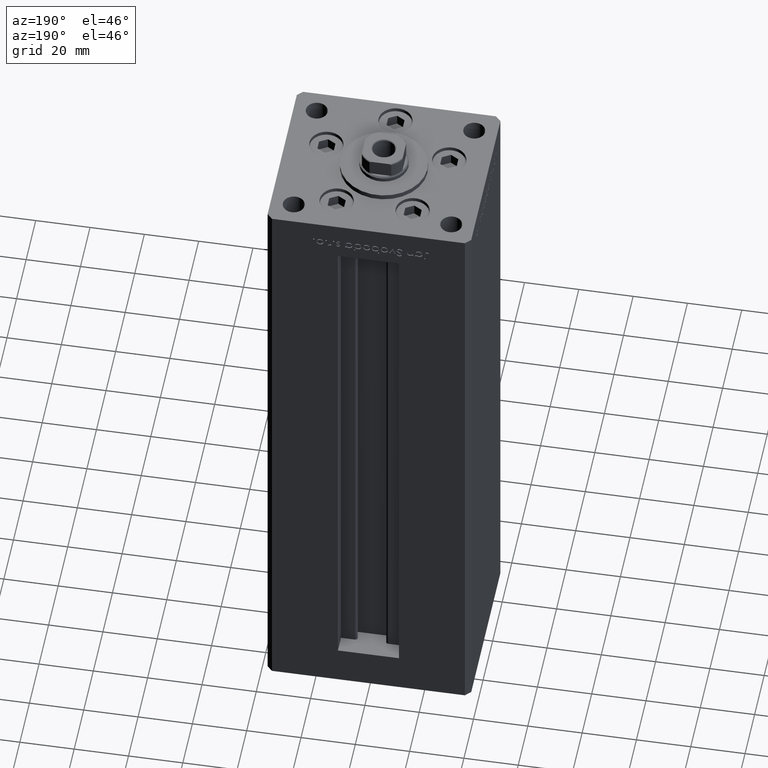
[diagram: clean part render]
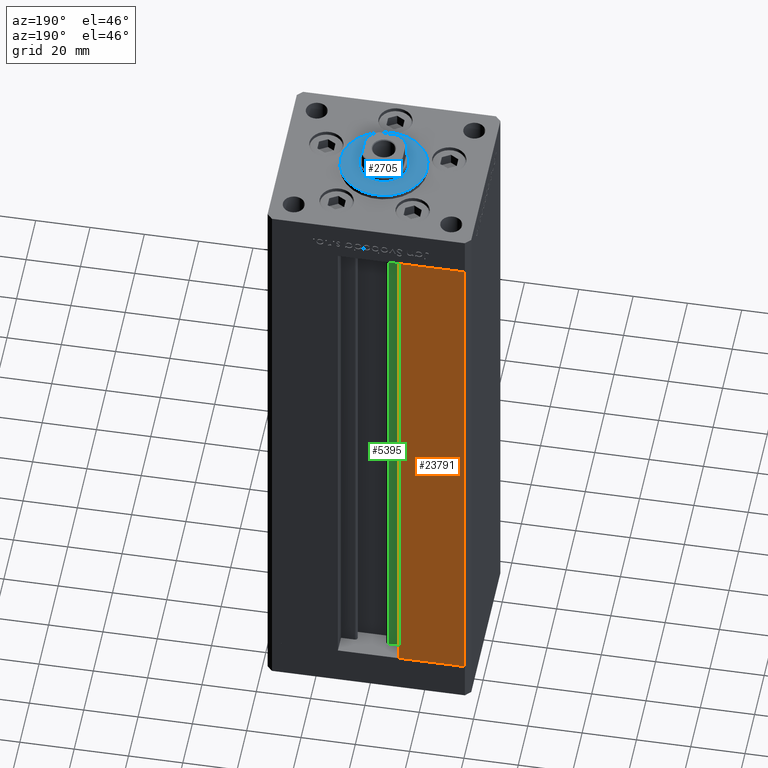
[diagram: same view with three faces highlighted in distinct colors, each labeled with its STEP entity id]
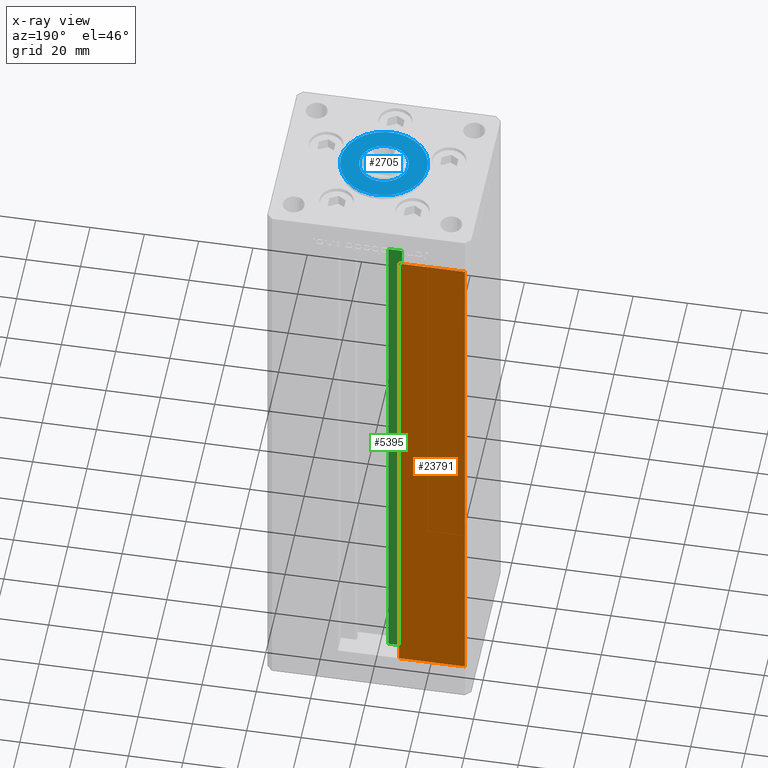
[diagram: x-ray of the same camera — body ghosted, the three highlighted faces saturated]
A machine part, auxiliary view with three faces highlighted in distinct colors.
The next image is the same camera in x-ray (body ghosted, the three faces saturated) — at least one of them is partly hidden behind the body in this view.
Their STEP definitions:

[orange] entity #23791 — the highlighted planar face has unit normal (0, -1, 0).
#2800 = LINE ( 'NONE', #35302, #12979 ) ;
#3823 = VECTOR ( 'NONE', #14023, 1000.000000000000000 ) ;
#4272 = PLANE ( 'NONE',  #44163 ) ;
#5485 = ORIENTED_EDGE ( 'NONE', *, *, #27662, .T. ) ;
#6782 = LINE ( 'NONE', #11022, #21915 ) ;
#6949 = VERTEX_POINT ( 'NONE', #35161 ) ;
#7874 = EDGE_CURVE ( 'NONE', #6949, #36967, #47795, .T. ) ;
#8798 = ORIENTED_EDGE ( 'NONE', *, *, #7874, .F. ) ;
#10707 = EDGE_CURVE ( 'NONE', #41382, #36967, #6782, .T. ) ;
#11022 = CARTESIAN_POINT ( 'NONE',  ( -11.25000000000000178, 32.49999999999999289, 206.0000000000000000 ) ) ;
#11390 = CARTESIAN_POINT ( 'NONE',  ( -11.25000000000000178, 32.49999999999999289, 0.000000000000000000 ) ) ;
#12979 = VECTOR ( 'NONE', #51614, 1000.000000000000000 ) ;
#14023 = DIRECTION ( 'NONE',  ( -0.000000000000000000, -0.000000000000000000, -1.000000000000000000 ) ) ;
#14065 = CARTESIAN_POINT ( 'NONE',  ( -11.25000000000000178, 32.49999999999999289, 206.0000000000000000 ) ) ;
#17664 = DIRECTION ( 'NONE',  ( 0.000000000000000000, -1.000000000000000000, 0.000000000000000000 ) ) ;
#20136 = DIRECTION ( 'NONE',  ( 0.000000000000000000, -0.000000000000000000, -1.000000000000000000 ) ) ;
#20441 = DIRECTION ( 'NONE',  ( 1.000000000000000000, 0.000000000000000000, 0.000000000000000000 ) ) ;
#21915 = VECTOR ( 'NONE', #20441, 1000.000000000000000 ) ;
#21940 = CARTESIAN_POINT ( 'NONE',  ( -35.50000000000000000, 32.49999999999999289, 206.0000000000000000 ) ) ;
#23521 = EDGE_LOOP ( 'NONE', ( #39667, #8798, #5485, #34471 ) ) ;
#23791 = ADVANCED_FACE ( 'NONE', ( #48860 ), #4272, .F. ) ;
#27662 = EDGE_CURVE ( 'NONE', #6949, #36816, #2800, .T. ) ;
#31806 = CARTESIAN_POINT ( 'NONE',  ( -35.50000000000000000, 32.49999999999999289, 0.000000000000000000 ) ) ;
#34355 = LINE ( 'NONE', #21940, #3823 ) ;
#34471 = ORIENTED_EDGE ( 'NONE', *, *, #48631, .F. ) ;
#35161 = CARTESIAN_POINT ( 'NONE',  ( -11.25000000000000178, 32.49999999999999289, 0.000000000000000000 ) ) ;
#35302 = CARTESIAN_POINT ( 'NONE',  ( -11.25000000000000178, 32.49999999999999289, 0.000000000000000000 ) ) ;
#36816 = VERTEX_POINT ( 'NONE', #31806 ) ;
#36967 = VERTEX_POINT ( 'NONE', #14065 ) ;
#37029 = VECTOR ( 'NONE', #47529, 1000.000000000000000 ) ;
#39667 = ORIENTED_EDGE ( 'NONE', *, *, #10707, .T. ) ;
#41382 = VERTEX_POINT ( 'NONE', #44538 ) ;
#44163 = AXIS2_PLACEMENT_3D ( 'NONE', #50086, #17664, #20136 ) ;
#44538 = CARTESIAN_POINT ( 'NONE',  ( -35.50000000000000000, 32.49999999999999289, 206.0000000000000000 ) ) ;
#47529 = DIRECTION ( 'NONE',  ( -0.000000000000000000, -0.000000000000000000, 1.000000000000000000 ) ) ;
#47795 = LINE ( 'NONE', #11390, #37029 ) ;
#48631 = EDGE_CURVE ( 'NONE', #41382, #36816, #34355, .T. ) ;
#48860 = FACE_OUTER_BOUND ( 'NONE', #23521, .T. ) ;
#50086 = CARTESIAN_POINT ( 'NONE',  ( -11.25000000000000178, 32.49999999999999289, 206.0000000000000000 ) ) ;
#51614 = DIRECTION ( 'NONE',  ( -1.000000000000000000, 0.000000000000000000, 0.000000000000000000 ) ) ;

[blue] entity #2705 — the highlighted planar face has unit normal (0, 0, 1).
#537 = CIRCLE ( 'NONE', #45185, 9.000000000000000000 ) ;
#1303 = CARTESIAN_POINT ( 'NONE',  ( 16.00000000000000355, -4.979459025271462852E-15, 2.000000000000000000 ) ) ;
#2705 = ADVANCED_FACE ( 'NONE', ( #49267, #13150 ), #32957, .T. ) ;
#4779 = CARTESIAN_POINT ( 'NONE',  ( 0.000000000000000000, -6.938893903907228378E-15, 2.000000000000000000 ) ) ;
#5224 = CARTESIAN_POINT ( 'NONE',  ( 0.000000000000000000, -6.938893903907228378E-15, 2.000000000000000000 ) ) ;
#11027 = AXIS2_PLACEMENT_3D ( 'NONE', #5224, #40884, #41142 ) ;
#11100 = EDGE_CURVE ( 'NONE', #38228, #27109, #42126, .T. ) ;
#11359 = EDGE_CURVE ( 'NONE', #28117, #38294, #46395, .T. ) ;
#12024 = EDGE_CURVE ( 'NONE', #27109, #38228, #21126, .T. ) ;
#12974 = DIRECTION ( 'NONE',  ( 1.000000000000000000, 0.000000000000000000, 0.000000000000000000 ) ) ;
#13150 = FACE_OUTER_BOUND ( 'NONE', #16284, .T. ) ;
#14100 = CARTESIAN_POINT ( 'NONE',  ( 0.000000000000000000, -6.938893903907228378E-15, 2.000000000000000000 ) ) ;
#15496 = ORIENTED_EDGE ( 'NONE', *, *, #11359, .F. ) ;
#16284 = EDGE_LOOP ( 'NONE', ( #31486, #40754 ) ) ;
#16364 = CARTESIAN_POINT ( 'NONE',  ( -9.000000000000000000, -5.836711784674610467E-15, 2.000000000000000000 ) ) ;
#17540 = DIRECTION ( 'NONE',  ( 0.000000000000000000, 0.000000000000000000, 1.000000000000000000 ) ) ;
#21126 = CIRCLE ( 'NONE', #34622, 16.00000000000000355 ) ;
#21587 = CARTESIAN_POINT ( 'NONE',  ( 0.000000000000000000, -6.938893903907228378E-15, 2.000000000000000000 ) ) ;
#23448 = EDGE_LOOP ( 'NONE', ( #31755, #15496 ) ) ;
#24446 = AXIS2_PLACEMENT_3D ( 'NONE', #4779, #29600, #12974 ) ;
#25808 = DIRECTION ( 'NONE',  ( 1.000000000000000000, 0.000000000000000000, -0.000000000000000000 ) ) ;
#26862 = CARTESIAN_POINT ( 'NONE',  ( 9.000000000000000000, -6.938893903907228378E-15, 2.000000000000000000 ) ) ;
#27109 = VERTEX_POINT ( 'NONE', #1303 ) ;
#27137 = CARTESIAN_POINT ( 'NONE',  ( 0.000000000000000000, -6.938893903907228378E-15, 2.000000000000000000 ) ) ;
#28117 = VERTEX_POINT ( 'NONE', #16364 ) ;
#29600 = DIRECTION ( 'NONE',  ( 0.000000000000000000, 0.000000000000000000, 1.000000000000000000 ) ) ;
#31486 = ORIENTED_EDGE ( 'NONE', *, *, #11100, .T. ) ;
#31755 = ORIENTED_EDGE ( 'NONE', *, *, #50393, .F. ) ;
#32957 = PLANE ( 'NONE',  #42112 ) ;
#33645 = DIRECTION ( 'NONE',  ( 1.000000000000000000, 0.000000000000000000, 0.000000000000000000 ) ) ;
#34622 = AXIS2_PLACEMENT_3D ( 'NONE', #27137, #35063, #43206 ) ;
#35063 = DIRECTION ( 'NONE',  ( 0.000000000000000000, 0.000000000000000000, 1.000000000000000000 ) ) ;
#38228 = VERTEX_POINT ( 'NONE', #49018 ) ;
#38294 = VERTEX_POINT ( 'NONE', #26862 ) ;
#40754 = ORIENTED_EDGE ( 'NONE', *, *, #12024, .T. ) ;
#40858 = DIRECTION ( 'NONE',  ( 0.000000000000000000, 0.000000000000000000, 1.000000000000000000 ) ) ;
#40884 = DIRECTION ( 'NONE',  ( 0.000000000000000000, 0.000000000000000000, 1.000000000000000000 ) ) ;
#41142 = DIRECTION ( 'NONE',  ( 1.000000000000000000, 0.000000000000000000, 0.000000000000000000 ) ) ;
#42112 = AXIS2_PLACEMENT_3D ( 'NONE', #21587, #40858, #25808 ) ;
#42126 = CIRCLE ( 'NONE', #24446, 16.00000000000000355 ) ;
#43206 = DIRECTION ( 'NONE',  ( 1.000000000000000000, 0.000000000000000000, 0.000000000000000000 ) ) ;
#45185 = AXIS2_PLACEMENT_3D ( 'NONE', #14100, #17540, #33645 ) ;
#46395 = CIRCLE ( 'NONE', #11027, 9.000000000000000000 ) ;
#49018 = CARTESIAN_POINT ( 'NONE',  ( -16.00000000000000355, -6.938893903907228378E-15, 2.000000000000000000 ) ) ;
#49267 = FACE_BOUND ( 'NONE', #23448, .T. ) ;
#50393 = EDGE_CURVE ( 'NONE', #38294, #28117, #537, .T. ) ;

[green] entity #5395 — the highlighted planar face has unit normal (0, -1, 0).
#65 = CARTESIAN_POINT ( 'NONE',  ( -6.183333333334001480, 25.99999999999999289, 206.0000000000000000 ) ) ;
#2874 = LINE ( 'NONE', #50634, #32890 ) ;
#4353 = VERTEX_POINT ( 'NONE', #21712 ) ;
#5395 = ADVANCED_FACE ( 'NONE', ( #18015 ), #45974, .F. ) ;
#5811 = EDGE_CURVE ( 'NONE', #11882, #25996, #2874, .T. ) ;
#8874 = DIRECTION ( 'NONE',  ( 1.000000000000000000, -0.000000000000000000, -0.000000000000000000 ) ) ;
#10293 = DIRECTION ( 'NONE',  ( -1.000000000000000000, 0.000000000000000000, 0.000000000000000000 ) ) ;
#11882 = VERTEX_POINT ( 'NONE', #25556 ) ;
#14942 = ORIENTED_EDGE ( 'NONE', *, *, #22437, .F. ) ;
#18015 = FACE_OUTER_BOUND ( 'NONE', #26936, .T. ) ;
#19549 = ORIENTED_EDGE ( 'NONE', *, *, #34796, .T. ) ;
#21712 = CARTESIAN_POINT ( 'NONE',  ( -11.25000000000000178, 25.99999999999999289, 206.0000000000000000 ) ) ;
#22437 = EDGE_CURVE ( 'NONE', #46809, #11882, #48717, .T. ) ;
#24176 = VECTOR ( 'NONE', #29043, 1000.000000000000000 ) ;
#24558 = LINE ( 'NONE', #25073, #24176 ) ;
#25073 = CARTESIAN_POINT ( 'NONE',  ( -11.25000000000000178, 25.99999999999999289, 0.000000000000000000 ) ) ;
#25556 = CARTESIAN_POINT ( 'NONE',  ( -6.183333333334001480, 25.99999999999999289, 0.000000000000000000 ) ) ;
#25672 = DIRECTION ( 'NONE',  ( 0.000000000000000000, 0.000000000000000000, -1.000000000000000000 ) ) ;
#25996 = VERTEX_POINT ( 'NONE', #65 ) ;
#26936 = EDGE_LOOP ( 'NONE', ( #48015, #14942, #19549, #48903 ) ) ;
#27351 = VECTOR ( 'NONE', #8874, 1000.000000000000000 ) ;
#28823 = CARTESIAN_POINT ( 'NONE',  ( -11.25000000000000178, 25.99999999999999289, 0.000000000000000000 ) ) ;
#29043 = DIRECTION ( 'NONE',  ( -0.000000000000000000, -0.000000000000000000, 1.000000000000000000 ) ) ;
#29127 = DIRECTION ( 'NONE',  ( 0.000000000000000000, -1.000000000000000000, -0.000000000000000000 ) ) ;
#30888 = DIRECTION ( 'NONE',  ( -0.000000000000000000, -0.000000000000000000, 1.000000000000000000 ) ) ;
#30889 = LINE ( 'NONE', #42222, #48388 ) ;
#32853 = AXIS2_PLACEMENT_3D ( 'NONE', #41762, #29127, #25672 ) ;
#32890 = VECTOR ( 'NONE', #30888, 1000.000000000000000 ) ;
#33168 = CARTESIAN_POINT ( 'NONE',  ( -6.183333333334001480, 25.99999999999999289, 0.000000000000000000 ) ) ;
#34796 = EDGE_CURVE ( 'NONE', #46809, #4353, #24558, .T. ) ;
#41762 = CARTESIAN_POINT ( 'NONE',  ( -6.183333333334001480, 25.99999999999999289, 0.000000000000000000 ) ) ;
#42222 = CARTESIAN_POINT ( 'NONE',  ( 0.000000000000000000, 25.99999999999999289, 206.0000000000000000 ) ) ;
#43008 = EDGE_CURVE ( 'NONE', #25996, #4353, #30889, .T. ) ;
#45974 = PLANE ( 'NONE',  #32853 ) ;
#46809 = VERTEX_POINT ( 'NONE', #28823 ) ;
#48015 = ORIENTED_EDGE ( 'NONE', *, *, #5811, .F. ) ;
#48388 = VECTOR ( 'NONE', #10293, 1000.000000000000000 ) ;
#48717 = LINE ( 'NONE', #33168, #27351 ) ;
#48903 = ORIENTED_EDGE ( 'NONE', *, *, #43008, .F. ) ;
#50634 = CARTESIAN_POINT ( 'NONE',  ( -6.183333333334001480, 25.99999999999999289, 0.000000000000000000 ) ) ;